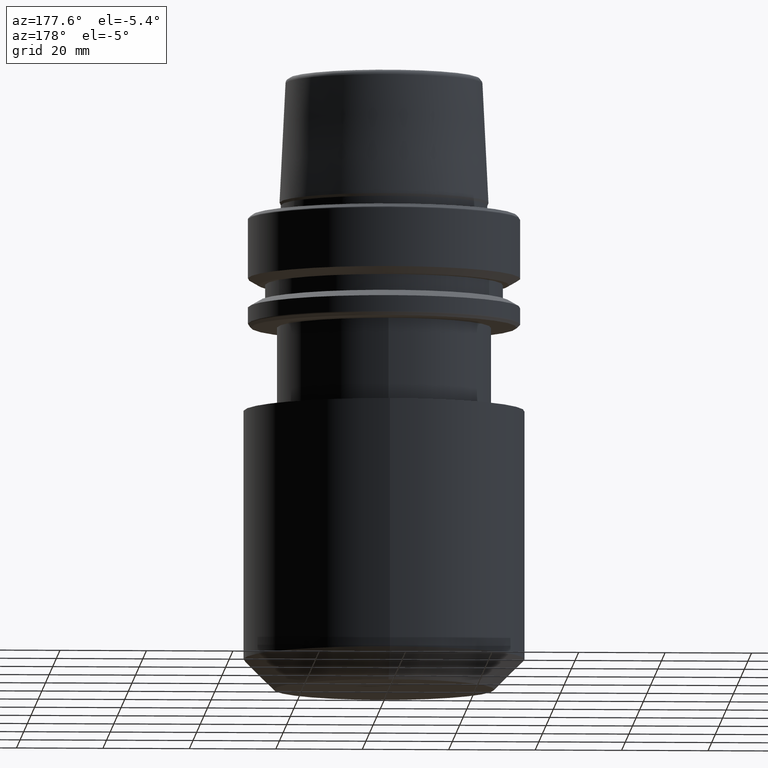
[diagram: clean part render]
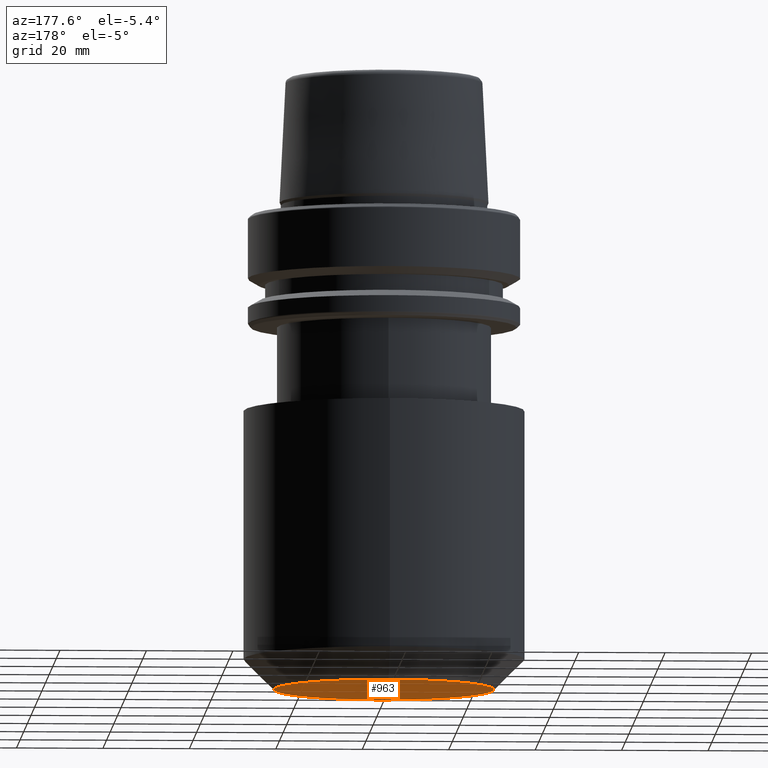
[diagram: same view with one face highlighted and labeled with its STEP entity id]
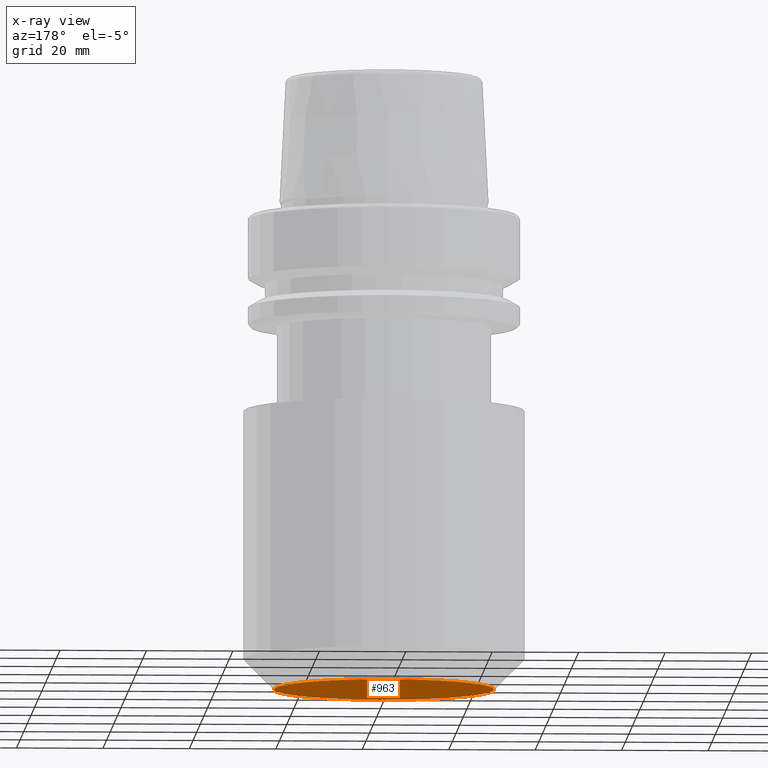
[diagram: x-ray of the same camera — body ghosted, the highlighted face saturated]
A machine part, auxiliary view. The second image highlights one B-rep face of the part: STEP entity #963.
The next image is the same camera in x-ray: the body ghosted, the highlighted face saturated — about 0% of this face is hidden behind the body in this view.
In plain terms, the highlighted planar face has unit normal (-0, 0, -1).
Its self-contained STEP definition (entity closure, byte-faithful):
#24 = CIRCLE ( 'NONE', #257, 25.50000000000000400 ) ;
#150 = DIRECTION ( 'NONE',  ( 0.0000000000000000000, 1.000000000000000000, 0.0000000000000000000 ) ) ;
#208 = EDGE_CURVE ( 'NONE', #1287, #771, #252, .T. ) ;
#252 = CIRCLE ( 'NONE', #785, 25.50000000000000400 ) ;
#257 = AXIS2_PLACEMENT_3D ( 'NONE', #394, #259, #150 ) ;
#259 = DIRECTION ( 'NONE',  ( -0.0000000000000000000, 4.965320723570064500E-017, -1.000000000000000000 ) ) ;
#380 = CARTESIAN_POINT ( 'NONE',  ( 0.0000000000000000000, -25.50000000000001100, -109.9999999999999900 ) ) ;
#392 = EDGE_LOOP ( 'NONE', ( #959, #1232 ) ) ;
#394 = CARTESIAN_POINT ( 'NONE',  ( 0.0000000000000000000, -6.123233995736768500E-015, -109.9999999999999900 ) ) ;
#413 = DIRECTION ( 'NONE',  ( 0.0000000000000000000, 1.000000000000000000, 4.965320723570064500E-017 ) ) ;
#415 = DIRECTION ( 'NONE',  ( 0.0000000000000000000, 1.000000000000000000, 0.0000000000000000000 ) ) ;
#535 = FACE_OUTER_BOUND ( 'NONE', #392, .T. ) ;
#591 = CARTESIAN_POINT ( 'NONE',  ( 3.551475717527325600E-015, 25.50000000000000000, -109.9999999999999900 ) ) ;
#644 = AXIS2_PLACEMENT_3D ( 'NONE', #792, #985, #413 ) ;
#696 = EDGE_CURVE ( 'NONE', #771, #1287, #24, .T. ) ;
#771 = VERTEX_POINT ( 'NONE', #591 ) ;
#785 = AXIS2_PLACEMENT_3D ( 'NONE', #1095, #1020, #415 ) ;
#792 = CARTESIAN_POINT ( 'NONE',  ( 0.0000000000000000000, 25.50000000000000000, -109.9999999999999900 ) ) ;
#887 = PLANE ( 'NONE',  #644 ) ;
#959 = ORIENTED_EDGE ( 'NONE', *, *, #208, .T. ) ;
#963 = ADVANCED_FACE ( 'NONE', ( #535 ), #887, .T. ) ;
#985 = DIRECTION ( 'NONE',  ( -0.0000000000000000000, 4.965320723570064500E-017, -1.000000000000000000 ) ) ;
#1020 = DIRECTION ( 'NONE',  ( -0.0000000000000000000, 4.965320723570064500E-017, -1.000000000000000000 ) ) ;
#1095 = CARTESIAN_POINT ( 'NONE',  ( 0.0000000000000000000, -6.123233995736768500E-015, -109.9999999999999900 ) ) ;
#1232 = ORIENTED_EDGE ( 'NONE', *, *, #696, .T. ) ;
#1287 = VERTEX_POINT ( 'NONE', #380 ) ;